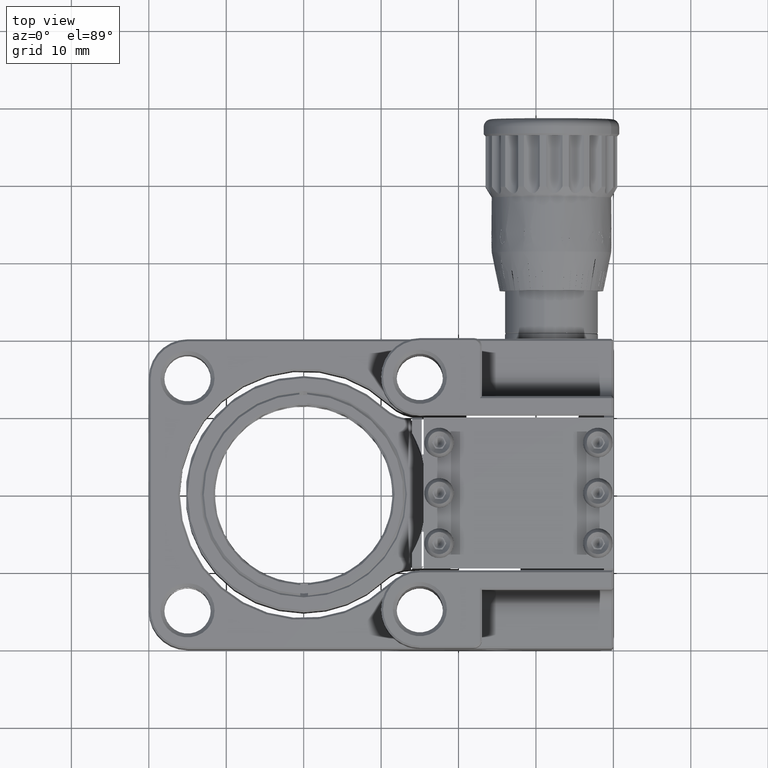
[diagram: clean part render]
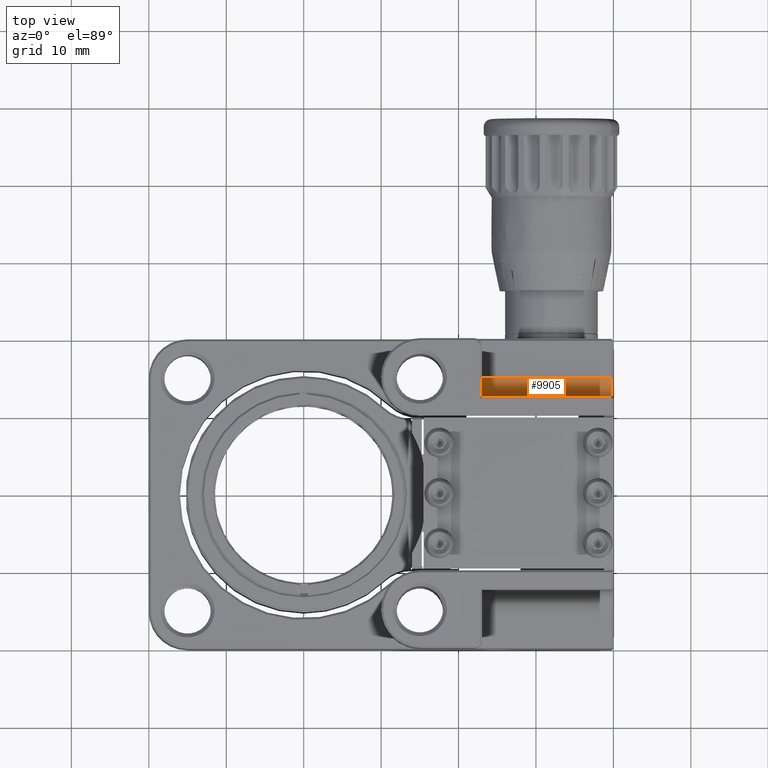
[diagram: same view with one face highlighted and labeled with its STEP entity id]
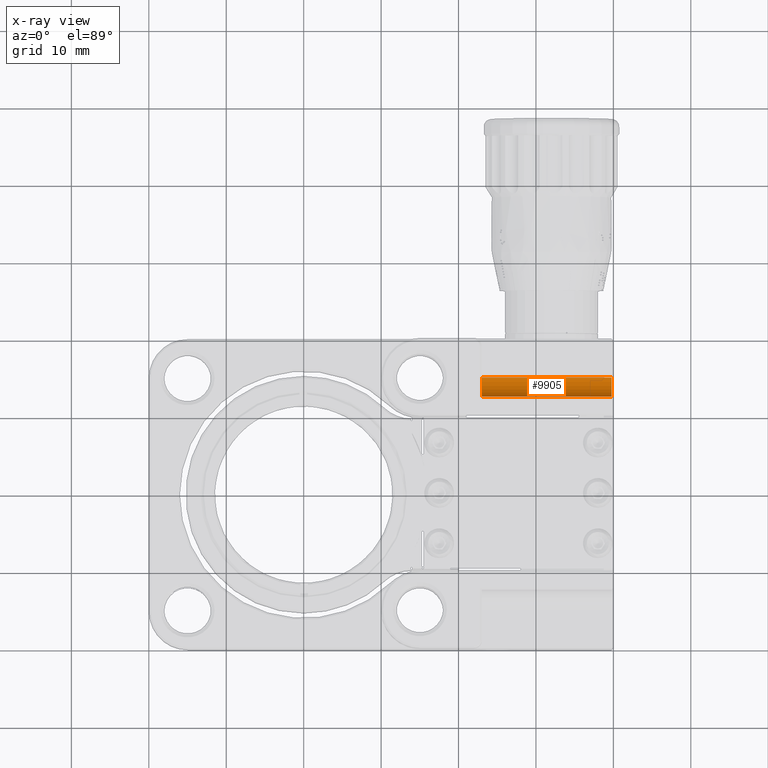
[diagram: x-ray of the same camera — body ghosted, the highlighted face saturated]
A machine part, top view. The second image highlights one B-rep face of the part: STEP entity #9905.
The next image is the same camera in x-ray: the body ghosted, the highlighted face saturated — about 0% of this face is hidden behind the body in this view.
In plain terms, the highlighted cylindrical surface (edge-blend (fillet) strip) has radius 2.5 mm, axis along (-1, -0, 0).
Its self-contained STEP definition (entity closure, byte-faithful):
#250 = CARTESIAN_POINT ( 'NONE',  ( 39.74999999999999289, 12.50000000000001776, 11.40000000000000391 ) ) ;
#417 = DIRECTION ( 'NONE',  ( -1.387778780781445478E-15, 1.000000000000000000, 0.000000000000000000 ) ) ;
#1049 = DIRECTION ( 'NONE',  ( 0.000000000000000000, -1.000000000000000000, 0.000000000000000000 ) ) ;
#1571 = CIRCLE ( 'NONE', #34259, 2.500000000000000444 ) ;
#2409 = CYLINDRICAL_SURFACE ( 'NONE', #29891, 2.500000000000000444 ) ;
#3577 = FACE_OUTER_BOUND ( 'NONE', #26880, .T. ) ;
#4434 = DIRECTION ( 'NONE',  ( 1.000000000000000000, -0.000000000000000000, -0.000000000000000000 ) ) ;
#7215 = AXIS2_PLACEMENT_3D ( 'NONE', #19439, #4434, #8115 ) ;
#7370 = CARTESIAN_POINT ( 'NONE',  ( 23.00000000000000000, 12.50000000000001421, 11.40000000000000391 ) ) ;
#7543 = EDGE_CURVE ( 'NONE', #23074, #40353, #1571, .T. ) ;
#8115 = DIRECTION ( 'NONE',  ( 0.000000000000000000, 0.000000000000000000, 1.000000000000000000 ) ) ;
#8831 = DIRECTION ( 'NONE',  ( 1.000000000000000000, 1.734723475976807094E-16, 0.000000000000000000 ) ) ;
#9905 = ADVANCED_FACE ( 'NONE', ( #3577 ), #2409, .F. ) ;
#12442 = CARTESIAN_POINT ( 'NONE',  ( 40.00000000000000000, 15.00000000000001776, 8.900000000000003908 ) ) ;
#14936 = CARTESIAN_POINT ( 'NONE',  ( 23.00000000000000000, 12.50000000000001421, 11.40000000000000391 ) ) ;
#15646 = DIRECTION ( 'NONE',  ( -1.000000000000000000, -1.734723475976807094E-16, 0.000000000000000000 ) ) ;
#16272 = VECTOR ( 'NONE', #8831, 1000.000000000000000 ) ;
#18269 = DIRECTION ( 'NONE',  ( 1.000000000000000000, 9.251858538542967883E-16, -0.000000000000000000 ) ) ;
#19439 = CARTESIAN_POINT ( 'NONE',  ( 39.74999999999999289, 15.00000000000001776, 11.40000000000000391 ) ) ;
#19767 = LINE ( 'NONE', #12442, #16272 ) ;
#21969 = CARTESIAN_POINT ( 'NONE',  ( 23.00000000000000000, 15.00000000000001421, 11.40000000000000391 ) ) ;
#22051 = CARTESIAN_POINT ( 'NONE',  ( 39.74999999999999289, 15.00000000000001776, 8.900000000000003908 ) ) ;
#23074 = VERTEX_POINT ( 'NONE', #14936 ) ;
#23520 = EDGE_CURVE ( 'NONE', #40353, #41863, #19767, .T. ) ;
#25956 = DIRECTION ( 'NONE',  ( -1.000000000000000000, -1.734723475976807094E-16, 0.000000000000000000 ) ) ;
#26880 = EDGE_LOOP ( 'NONE', ( #28633, #44791, #44503, #30549 ) ) ;
#28633 = ORIENTED_EDGE ( 'NONE', *, *, #39631, .F. ) ;
#29891 = AXIS2_PLACEMENT_3D ( 'NONE', #38370, #15646, #1049 ) ;
#30549 = ORIENTED_EDGE ( 'NONE', *, *, #7543, .F. ) ;
#32359 = EDGE_CURVE ( 'NONE', #35642, #41863, #37797, .T. ) ;
#34259 = AXIS2_PLACEMENT_3D ( 'NONE', #21969, #18269, #417 ) ;
#34950 = LINE ( 'NONE', #7370, #42337 ) ;
#35642 = VERTEX_POINT ( 'NONE', #250 ) ;
#36934 = CARTESIAN_POINT ( 'NONE',  ( 22.99999999999999645, 15.00000000000001421, 8.900000000000003908 ) ) ;
#37797 = CIRCLE ( 'NONE', #7215, 2.500000000000000444 ) ;
#38370 = CARTESIAN_POINT ( 'NONE',  ( 22.99999999999999289, 15.00000000000001421, 11.40000000000000391 ) ) ;
#39631 = EDGE_CURVE ( 'NONE', #35642, #23074, #34950, .T. ) ;
#40353 = VERTEX_POINT ( 'NONE', #36934 ) ;
#41863 = VERTEX_POINT ( 'NONE', #22051 ) ;
#42337 = VECTOR ( 'NONE', #25956, 1000.000000000000000 ) ;
#44503 = ORIENTED_EDGE ( 'NONE', *, *, #23520, .F. ) ;
#44791 = ORIENTED_EDGE ( 'NONE', *, *, #32359, .T. ) ;